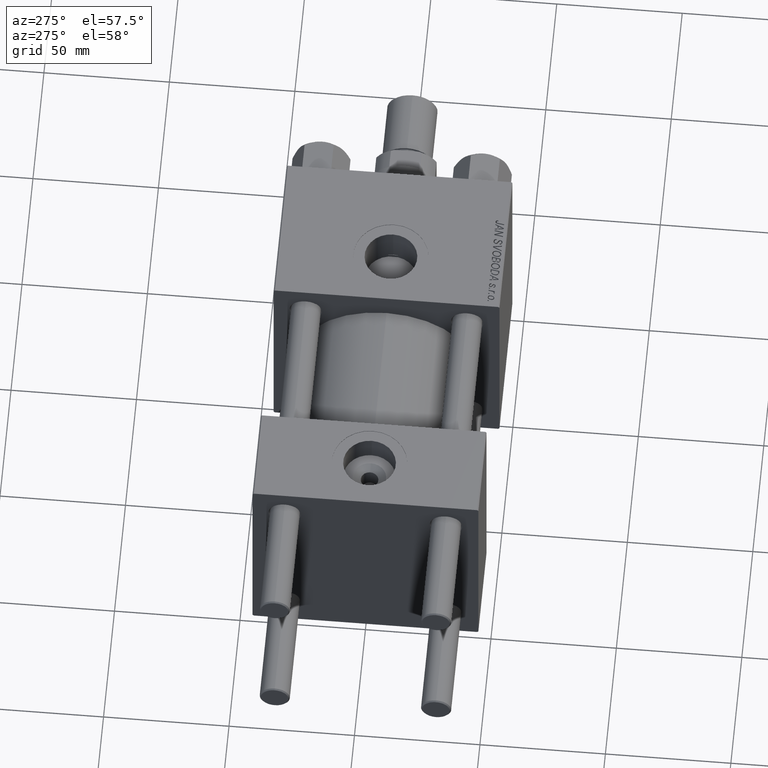
[diagram: clean part render]
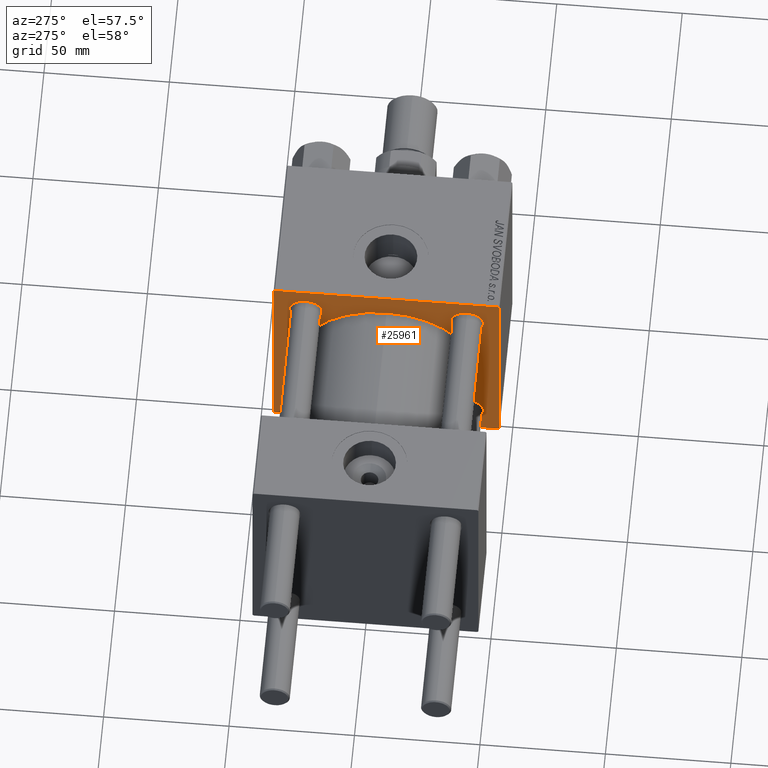
[diagram: same view with one face highlighted and labeled with its STEP entity id]
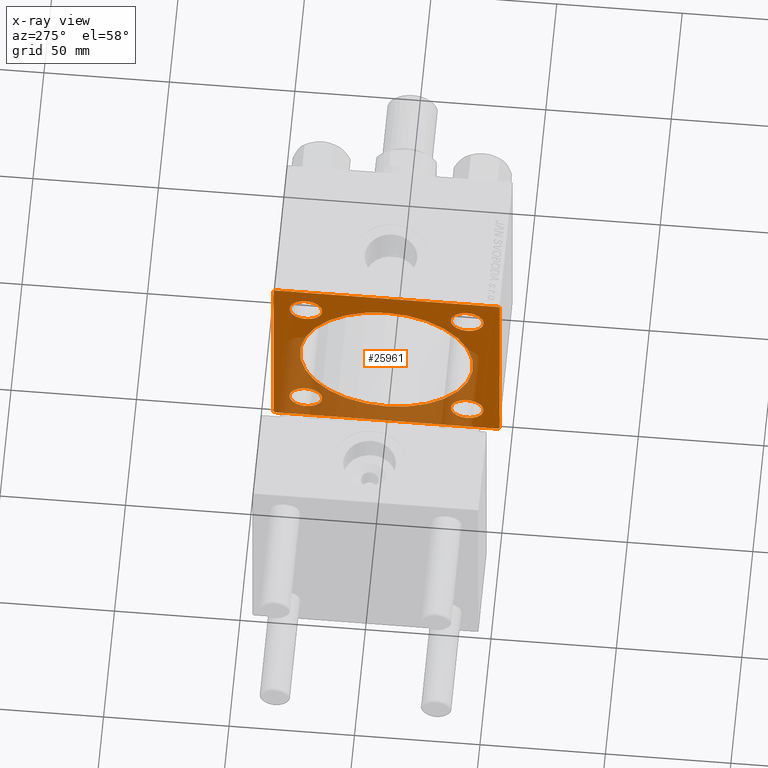
[diagram: x-ray of the same camera — body ghosted, the highlighted face saturated]
A machine part, auxiliary view. The second image highlights one B-rep face of the part: STEP entity #25961.
The next image is the same camera in x-ray: the body ghosted, the highlighted face saturated — about 37% of this face is hidden behind the body in this view.
In plain terms, the highlighted planar face has unit normal (-1, 0, 0).
Its self-contained STEP definition (entity closure, byte-faithful):
#113 = DIRECTION ( 'NONE',  ( -0.000000000000000000, -0.7071067811865474617, -0.7071067811865474617 ) ) ;
#387 = ORIENTED_EDGE ( 'NONE', *, *, #11499, .T. ) ;
#862 = EDGE_CURVE ( 'NONE', #11532, #43978, #29484, .T. ) ;
#1062 = AXIS2_PLACEMENT_3D ( 'NONE', #5690, #21216, #41125 ) ;
#1177 = CARTESIAN_POINT ( 'NONE',  ( 96.00000000000000000, -44.49999999999990052, -45.00000000000000000 ) ) ;
#1484 = CARTESIAN_POINT ( 'NONE',  ( 96.00000000000000000, -44.74999999999965183, -44.75000000000027001 ) ) ;
#1754 = ORIENTED_EDGE ( 'NONE', *, *, #44187, .T. ) ;
#2032 = CARTESIAN_POINT ( 'NONE',  ( 96.00000000000000000, 0.000000000000000000, 0.000000000000000000 ) ) ;
#2165 = DIRECTION ( 'NONE',  ( 0.000000000000000000, 0.000000000000000000, 1.000000000000000000 ) ) ;
#2277 = ORIENTED_EDGE ( 'NONE', *, *, #36585, .T. ) ;
#3262 = EDGE_CURVE ( 'NONE', #17591, #8990, #39697, .T. ) ;
#3506 = DIRECTION ( 'NONE',  ( 0.000000000000000000, 0.000000000000000000, 1.000000000000000000 ) ) ;
#3769 = LINE ( 'NONE', #22649, #25092 ) ;
#3941 = CIRCLE ( 'NONE', #33225, 34.49999999999999289 ) ;
#4394 = CARTESIAN_POINT ( 'NONE',  ( 96.00000000000000000, 45.00000000000001421, -44.49999999999997158 ) ) ;
#4478 = EDGE_LOOP ( 'NONE', ( #26429, #28655 ) ) ;
#4822 = EDGE_CURVE ( 'NONE', #22141, #43978, #13674, .T. ) ;
#5106 = FACE_BOUND ( 'NONE', #30171, .T. ) ;
#5303 = DIRECTION ( 'NONE',  ( 0.000000000000000000, -0.7071067811865524577, 0.7071067811865426878 ) ) ;
#5320 = VERTEX_POINT ( 'NONE', #5673 ) ;
#5616 = FACE_OUTER_BOUND ( 'NONE', #12882, .T. ) ;
#5673 = CARTESIAN_POINT ( 'NONE',  ( 96.00000000000000000, 45.00000000000001421, 44.49999999999997158 ) ) ;
#5690 = CARTESIAN_POINT ( 'NONE',  ( 96.00000000000000000, 32.14999999999999147, -32.15000000000000568 ) ) ;
#5871 = FACE_BOUND ( 'NONE', #10688, .T. ) ;
#6064 = ORIENTED_EDGE ( 'NONE', *, *, #37520, .T. ) ;
#6200 = CARTESIAN_POINT ( 'NONE',  ( 96.00000000000000000, 0.000000000000000000, 34.49999999999999289 ) ) ;
#6466 = ORIENTED_EDGE ( 'NONE', *, *, #7304, .T. ) ;
#6990 = DIRECTION ( 'NONE',  ( 0.000000000000000000, 0.7071067811865474617, -0.7071067811865474617 ) ) ;
#7089 = CIRCLE ( 'NONE', #13591, 34.49999999999999289 ) ;
#7304 = EDGE_CURVE ( 'NONE', #26485, #38147, #40583, .T. ) ;
#7942 = EDGE_CURVE ( 'NONE', #21587, #12764, #3941, .T. ) ;
#8327 = DIRECTION ( 'NONE',  ( 1.000000000000000000, 0.000000000000000000, 0.000000000000000000 ) ) ;
#8898 = DIRECTION ( 'NONE',  ( 1.000000000000000000, 0.000000000000000000, 0.000000000000000000 ) ) ;
#8990 = VERTEX_POINT ( 'NONE', #28441 ) ;
#9189 = VECTOR ( 'NONE', #5303, 1000.000000000000000 ) ;
#9681 = CARTESIAN_POINT ( 'NONE',  ( 96.00000000000000000, 4.225031457058367344E-15, -34.49999999999999289 ) ) ;
#9899 = DIRECTION ( 'NONE',  ( 1.000000000000000000, 0.000000000000000000, 0.000000000000000000 ) ) ;
#10251 = EDGE_CURVE ( 'NONE', #17081, #46241, #23552, .T. ) ;
#10391 = VECTOR ( 'NONE', #33553, 1000.000000000000114 ) ;
#10688 = EDGE_LOOP ( 'NONE', ( #6466, #6064 ) ) ;
#11258 = AXIS2_PLACEMENT_3D ( 'NONE', #30251, #49880, #35066 ) ;
#11318 = EDGE_CURVE ( 'NONE', #29772, #26001, #43919, .T. ) ;
#11499 = EDGE_CURVE ( 'NONE', #24871, #16022, #34516, .T. ) ;
#11532 = VERTEX_POINT ( 'NONE', #45991 ) ;
#11654 = DIRECTION ( 'NONE',  ( 0.000000000000000000, 0.000000000000000000, 1.000000000000000000 ) ) ;
#12100 = VECTOR ( 'NONE', #6990, 1000.000000000000114 ) ;
#12426 = CARTESIAN_POINT ( 'NONE',  ( 96.00000000000000000, -44.99999999999999289, -44.49999999999991473 ) ) ;
#12764 = VERTEX_POINT ( 'NONE', #6200 ) ;
#12882 = EDGE_LOOP ( 'NONE', ( #36281, #20823, #30221, #23659, #17040, #44122, #2277, #387 ) ) ;
#13591 = AXIS2_PLACEMENT_3D ( 'NONE', #24442, #8898, #32069 ) ;
#13674 = LINE ( 'NONE', #29732, #10391 ) ;
#14170 = ORIENTED_EDGE ( 'NONE', *, *, #10251, .T. ) ;
#15183 = EDGE_CURVE ( 'NONE', #12764, #21587, #7089, .T. ) ;
#15302 = AXIS2_PLACEMENT_3D ( 'NONE', #19277, #48957, #11654 ) ;
#15348 = CARTESIAN_POINT ( 'NONE',  ( 96.00000000000000000, 32.14999999999999147, 38.65000000000004121 ) ) ;
#15403 = AXIS2_PLACEMENT_3D ( 'NONE', #28166, #25871, #2165 ) ;
#15465 = LINE ( 'NONE', #31753, #36897 ) ;
#16022 = VERTEX_POINT ( 'NONE', #17298 ) ;
#16933 = CIRCLE ( 'NONE', #33244, 6.500000000000033751 ) ;
#17040 = ORIENTED_EDGE ( 'NONE', *, *, #862, .F. ) ;
#17081 = VERTEX_POINT ( 'NONE', #42876 ) ;
#17298 = CARTESIAN_POINT ( 'NONE',  ( 96.00000000000000000, 44.50000000000001421, -45.00000000000000000 ) ) ;
#17397 = VERTEX_POINT ( 'NONE', #12426 ) ;
#17591 = VERTEX_POINT ( 'NONE', #37635 ) ;
#18567 = AXIS2_PLACEMENT_3D ( 'NONE', #30759, #8327, #3506 ) ;
#18923 = CARTESIAN_POINT ( 'NONE',  ( 96.00000000000000000, -32.14999999999997726, 32.15000000000001279 ) ) ;
#19277 = CARTESIAN_POINT ( 'NONE',  ( 96.00000000000000000, -32.14999999999997726, -32.15000000000001279 ) ) ;
#19421 = DIRECTION ( 'NONE',  ( 1.000000000000000000, 0.000000000000000000, 0.000000000000000000 ) ) ;
#19658 = AXIS2_PLACEMENT_3D ( 'NONE', #18923, #19421, #34463 ) ;
#19964 = CARTESIAN_POINT ( 'NONE',  ( 96.00000000000000000, 44.75000000000000000, -44.75000000000000000 ) ) ;
#20256 = CARTESIAN_POINT ( 'NONE',  ( 96.00000000000000000, 32.14999999999999147, 32.15000000000000568 ) ) ;
#20636 = DIRECTION ( 'NONE',  ( -0.000000000000000000, 0.000000000000000000, 1.000000000000000000 ) ) ;
#20823 = ORIENTED_EDGE ( 'NONE', *, *, #36320, .T. ) ;
#20875 = PLANE ( 'NONE',  #37465 ) ;
#20916 = VECTOR ( 'NONE', #37870, 1000.000000000000000 ) ;
#21216 = DIRECTION ( 'NONE',  ( 1.000000000000000000, 0.000000000000000000, 0.000000000000000000 ) ) ;
#21299 = CARTESIAN_POINT ( 'NONE',  ( 96.00000000000000000, 32.14999999999999147, 32.15000000000000568 ) ) ;
#21587 = VERTEX_POINT ( 'NONE', #9681 ) ;
#21613 = EDGE_CURVE ( 'NONE', #16022, #49294, #3769, .T. ) ;
#21956 = AXIS2_PLACEMENT_3D ( 'NONE', #21299, #36836, #35146 ) ;
#22141 = VERTEX_POINT ( 'NONE', #23843 ) ;
#22420 = EDGE_CURVE ( 'NONE', #11532, #5320, #30431, .T. ) ;
#22649 = CARTESIAN_POINT ( 'NONE',  ( 96.00000000000000000, 45.00000000000001421, -45.00000000000000000 ) ) ;
#23045 = CIRCLE ( 'NONE', #1062, 6.500000000000033751 ) ;
#23234 = CARTESIAN_POINT ( 'NONE',  ( 96.00000000000000000, -44.49999999999994316, 44.99999999999998579 ) ) ;
#23552 = CIRCLE ( 'NONE', #15403, 6.500000000000033751 ) ;
#23659 = ORIENTED_EDGE ( 'NONE', *, *, #4822, .T. ) ;
#23843 = CARTESIAN_POINT ( 'NONE',  ( 96.00000000000000000, -45.00000000000000000, 44.49999999999995737 ) ) ;
#24442 = CARTESIAN_POINT ( 'NONE',  ( 96.00000000000000000, 0.000000000000000000, 0.000000000000000000 ) ) ;
#24694 = ORIENTED_EDGE ( 'NONE', *, *, #3262, .T. ) ;
#24871 = VERTEX_POINT ( 'NONE', #4394 ) ;
#24964 = FACE_BOUND ( 'NONE', #41251, .T. ) ;
#25092 = VECTOR ( 'NONE', #46349, 1000.000000000000000 ) ;
#25216 = CARTESIAN_POINT ( 'NONE',  ( 96.00000000000000000, 32.14999999999999147, -38.65000000000004121 ) ) ;
#25785 = EDGE_CURVE ( 'NONE', #22141, #17397, #48745, .T. ) ;
#25871 = DIRECTION ( 'NONE',  ( 1.000000000000000000, 0.000000000000000000, 0.000000000000000000 ) ) ;
#25961 = ADVANCED_FACE ( 'NONE', ( #24964, #5106, #5871, #40513, #36941, #5616 ), #20875, .T. ) ;
#26001 = VERTEX_POINT ( 'NONE', #33109 ) ;
#26429 = ORIENTED_EDGE ( 'NONE', *, *, #15183, .T. ) ;
#26485 = VERTEX_POINT ( 'NONE', #27386 ) ;
#26601 = CARTESIAN_POINT ( 'NONE',  ( 96.00000000000000000, 44.74999999999998579, 44.74999999999998579 ) ) ;
#27386 = CARTESIAN_POINT ( 'NONE',  ( 96.00000000000000000, 32.14999999999999147, -25.64999999999997016 ) ) ;
#27696 = VECTOR ( 'NONE', #40317, 1000.000000000000000 ) ;
#28166 = CARTESIAN_POINT ( 'NONE',  ( 96.00000000000000000, -32.14999999999997726, -32.15000000000001279 ) ) ;
#28441 = CARTESIAN_POINT ( 'NONE',  ( 96.00000000000000000, -32.14999999999997726, 38.65000000000004832 ) ) ;
#28497 = LINE ( 'NONE', #1484, #9189 ) ;
#28655 = ORIENTED_EDGE ( 'NONE', *, *, #7942, .T. ) ;
#29106 = CARTESIAN_POINT ( 'NONE',  ( 96.00000000000000000, -45.00000000000000000, 44.99999999999998579 ) ) ;
#29484 = LINE ( 'NONE', #33029, #20916 ) ;
#29699 = EDGE_CURVE ( 'NONE', #8990, #17591, #39996, .T. ) ;
#29732 = CARTESIAN_POINT ( 'NONE',  ( 96.00000000000000000, -44.74999999999997158, 44.74999999999997158 ) ) ;
#29772 = VERTEX_POINT ( 'NONE', #15348 ) ;
#30171 = EDGE_LOOP ( 'NONE', ( #38738, #33212 ) ) ;
#30221 = ORIENTED_EDGE ( 'NONE', *, *, #25785, .F. ) ;
#30251 = CARTESIAN_POINT ( 'NONE',  ( 96.00000000000000000, 32.14999999999999147, -32.15000000000000568 ) ) ;
#30431 = LINE ( 'NONE', #26601, #12100 ) ;
#30759 = CARTESIAN_POINT ( 'NONE',  ( 96.00000000000000000, -32.14999999999997726, 32.15000000000001279 ) ) ;
#30897 = VECTOR ( 'NONE', #113, 1000.000000000000114 ) ;
#31753 = CARTESIAN_POINT ( 'NONE',  ( 96.00000000000000000, 45.00000000000001421, 45.00000000000000000 ) ) ;
#32069 = DIRECTION ( 'NONE',  ( 0.000000000000000000, 0.000000000000000000, -1.000000000000000000 ) ) ;
#32866 = DIRECTION ( 'NONE',  ( -1.000000000000000000, 0.000000000000000000, -0.000000000000000000 ) ) ;
#33029 = CARTESIAN_POINT ( 'NONE',  ( 96.00000000000000000, 45.00000000000001421, 45.00000000000000000 ) ) ;
#33109 = CARTESIAN_POINT ( 'NONE',  ( 96.00000000000000000, 32.14999999999999147, 25.64999999999997016 ) ) ;
#33212 = ORIENTED_EDGE ( 'NONE', *, *, #45675, .T. ) ;
#33225 = AXIS2_PLACEMENT_3D ( 'NONE', #44528, #9899, #36894 ) ;
#33244 = AXIS2_PLACEMENT_3D ( 'NONE', #20256, #35794, #36045 ) ;
#33553 = DIRECTION ( 'NONE',  ( -0.000000000000000000, 0.7071067811865474617, 0.7071067811865474617 ) ) ;
#34463 = DIRECTION ( 'NONE',  ( 0.000000000000000000, 0.000000000000000000, 1.000000000000000000 ) ) ;
#34516 = LINE ( 'NONE', #19964, #30897 ) ;
#35066 = DIRECTION ( 'NONE',  ( 0.000000000000000000, 0.000000000000000000, 1.000000000000000000 ) ) ;
#35146 = DIRECTION ( 'NONE',  ( 0.000000000000000000, 0.000000000000000000, 1.000000000000000000 ) ) ;
#35794 = DIRECTION ( 'NONE',  ( 1.000000000000000000, 0.000000000000000000, 0.000000000000000000 ) ) ;
#35861 = CARTESIAN_POINT ( 'NONE',  ( 96.00000000000000000, -32.14999999999997726, -38.65000000000004832 ) ) ;
#36045 = DIRECTION ( 'NONE',  ( 0.000000000000000000, 0.000000000000000000, 1.000000000000000000 ) ) ;
#36281 = ORIENTED_EDGE ( 'NONE', *, *, #21613, .T. ) ;
#36320 = EDGE_CURVE ( 'NONE', #49294, #17397, #28497, .T. ) ;
#36585 = EDGE_CURVE ( 'NONE', #5320, #24871, #15465, .T. ) ;
#36836 = DIRECTION ( 'NONE',  ( 1.000000000000000000, 0.000000000000000000, 0.000000000000000000 ) ) ;
#36894 = DIRECTION ( 'NONE',  ( 0.000000000000000000, 0.000000000000000000, -1.000000000000000000 ) ) ;
#36897 = VECTOR ( 'NONE', #42728, 1000.000000000000000 ) ;
#36941 = FACE_BOUND ( 'NONE', #4478, .T. ) ;
#37465 = AXIS2_PLACEMENT_3D ( 'NONE', #2032, #32866, #20636 ) ;
#37520 = EDGE_CURVE ( 'NONE', #38147, #26485, #23045, .T. ) ;
#37635 = CARTESIAN_POINT ( 'NONE',  ( 96.00000000000000000, -32.14999999999997726, 25.64999999999997726 ) ) ;
#37870 = DIRECTION ( 'NONE',  ( 0.000000000000000000, -1.000000000000000000, -1.541976423090495140E-16 ) ) ;
#38147 = VERTEX_POINT ( 'NONE', #25216 ) ;
#38738 = ORIENTED_EDGE ( 'NONE', *, *, #11318, .T. ) ;
#39697 = CIRCLE ( 'NONE', #18567, 6.500000000000033751 ) ;
#39996 = CIRCLE ( 'NONE', #19658, 6.500000000000033751 ) ;
#40317 = DIRECTION ( 'NONE',  ( 0.000000000000000000, 7.709882115452478166E-17, -1.000000000000000000 ) ) ;
#40513 = FACE_BOUND ( 'NONE', #49900, .T. ) ;
#40583 = CIRCLE ( 'NONE', #11258, 6.500000000000033751 ) ;
#41125 = DIRECTION ( 'NONE',  ( 0.000000000000000000, 0.000000000000000000, 1.000000000000000000 ) ) ;
#41251 = EDGE_LOOP ( 'NONE', ( #48910, #24694 ) ) ;
#42728 = DIRECTION ( 'NONE',  ( 0.000000000000000000, 0.000000000000000000, -1.000000000000000000 ) ) ;
#42876 = CARTESIAN_POINT ( 'NONE',  ( 96.00000000000000000, -32.14999999999997726, -25.64999999999997726 ) ) ;
#43785 = CIRCLE ( 'NONE', #15302, 6.500000000000033751 ) ;
#43919 = CIRCLE ( 'NONE', #21956, 6.500000000000033751 ) ;
#43978 = VERTEX_POINT ( 'NONE', #23234 ) ;
#44122 = ORIENTED_EDGE ( 'NONE', *, *, #22420, .T. ) ;
#44187 = EDGE_CURVE ( 'NONE', #46241, #17081, #43785, .T. ) ;
#44528 = CARTESIAN_POINT ( 'NONE',  ( 96.00000000000000000, 0.000000000000000000, 0.000000000000000000 ) ) ;
#45675 = EDGE_CURVE ( 'NONE', #26001, #29772, #16933, .T. ) ;
#45991 = CARTESIAN_POINT ( 'NONE',  ( 96.00000000000000000, 44.49999999999998579, 45.00000000000000000 ) ) ;
#46241 = VERTEX_POINT ( 'NONE', #35861 ) ;
#46349 = DIRECTION ( 'NONE',  ( 0.000000000000000000, -1.000000000000000000, 0.000000000000000000 ) ) ;
#48745 = LINE ( 'NONE', #29106, #27696 ) ;
#48910 = ORIENTED_EDGE ( 'NONE', *, *, #29699, .T. ) ;
#48957 = DIRECTION ( 'NONE',  ( 1.000000000000000000, 0.000000000000000000, 0.000000000000000000 ) ) ;
#49294 = VERTEX_POINT ( 'NONE', #1177 ) ;
#49880 = DIRECTION ( 'NONE',  ( 1.000000000000000000, 0.000000000000000000, 0.000000000000000000 ) ) ;
#49900 = EDGE_LOOP ( 'NONE', ( #14170, #1754 ) ) ;